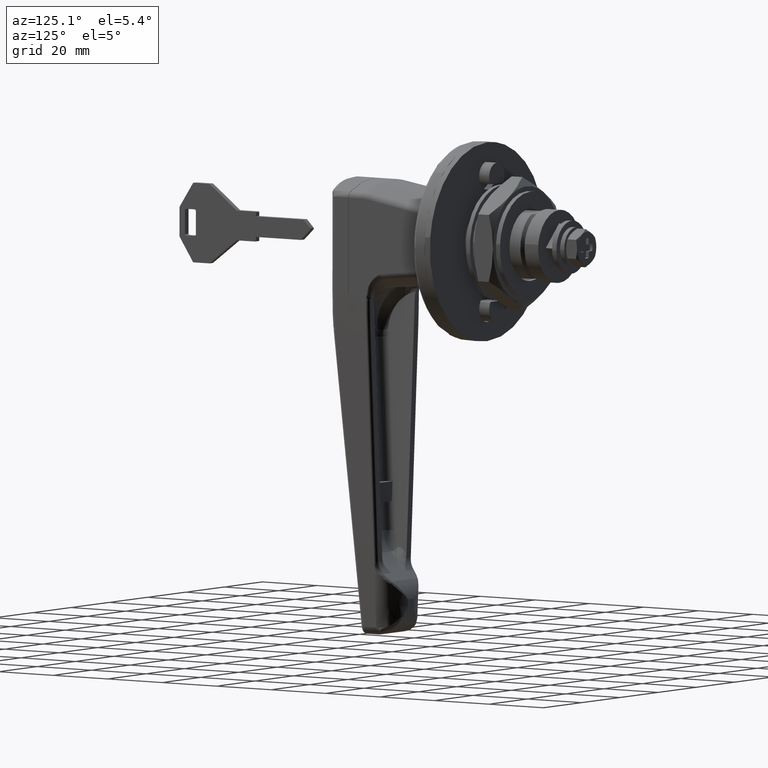
[diagram: clean part render]
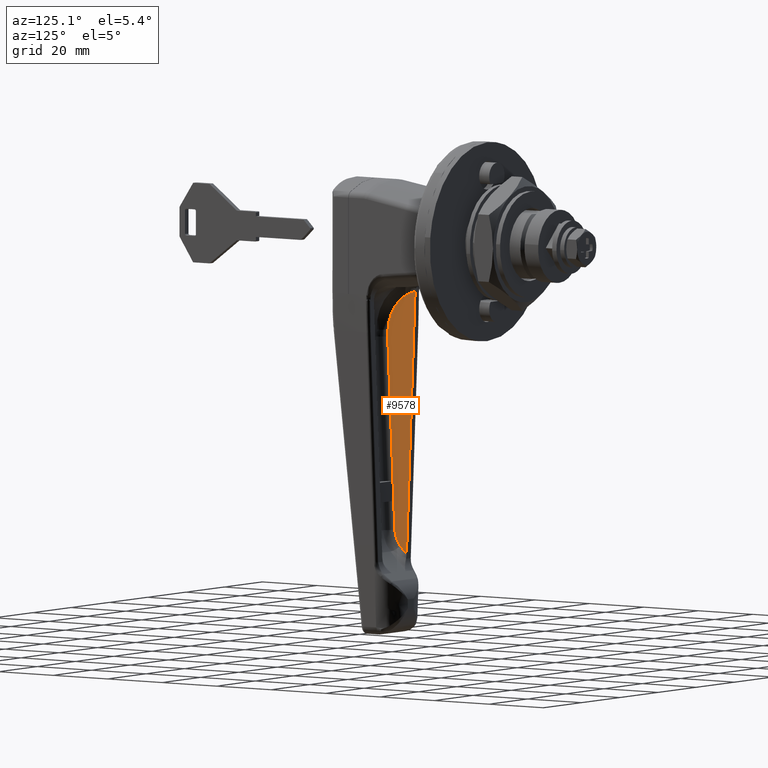
[diagram: same view with one face highlighted and labeled with its STEP entity id]
A machine part, auxiliary view. The second image highlights one B-rep face of the part: STEP entity #9578.
In plain terms, the highlighted face is a freeform B-spline surface patch.
Its self-contained STEP definition (entity closure, byte-faithful):
#8123=CARTESIAN_POINT('',(-32.928008071129653,10.770800055693000,-17.766841022822248));
#8124=VERTEX_POINT('',#8123);
#8168=CARTESIAN_POINT('',(-33.099999999999987,10.683275159098100,-19.316112343968701));
#8169=VERTEX_POINT('',#8168);
#8170=CARTESIAN_POINT('',(-33.099999999999987,10.683275159098100,-19.316112343968701));
#8171=CARTESIAN_POINT('',(-33.099999999999987,10.698041849966019,-19.054728308569210));
#8172=CARTESIAN_POINT('',(-33.070916845103348,10.727393411414370,-18.535178624400402));
#8173=CARTESIAN_POINT('',(-32.985227729266740,10.756391087181200,-18.021893042889008));
#8174=CARTESIAN_POINT('',(-32.928008071129653,10.770800055693019,-17.766841022822248));
#8175=B_SPLINE_CURVE_WITH_KNOTS('',3,(#8170,#8171,#8172,#8173,#8174),.UNSPECIFIED.,.F.,.U.,(4,1,4),(0.0,0.500000000000000,1.0),.UNSPECIFIED.);
#8176=EDGE_CURVE('',#8169,#8124,#8175,.T.);
#8408=CARTESIAN_POINT('',(-37.671831529858103,6.716446244393940,-89.532639441256308));
#8409=VERTEX_POINT('',#8408);
#8450=CARTESIAN_POINT('',(-35.501833188250487,6.452561439727720,-94.203643645325798));
#8451=VERTEX_POINT('',#8450);
#8465=CARTESIAN_POINT('',(-35.501833188250487,6.452561439727720,-94.203643645325798));
#8466=CARTESIAN_POINT('',(-36.437437625319923,6.505425344052883,-93.267903826359415));
#8467=CARTESIAN_POINT('',(-37.000602744492909,6.574067007767063,-92.052883127502497));
#8468=CARTESIAN_POINT('',(-37.560755301722871,6.642341483854277,-90.844361987994660));
#8469=CARTESIAN_POINT('',(-37.671831529857869,6.716446244393937,-89.532639441256279));
#8470=B_SPLINE_CURVE_WITH_KNOTS('',2,(#8465,#8466,#8467,#8468,#8469),.UNSPECIFIED.,.F.,.U.,(3,2,3),(0.0,0.500000000000000,1.0),.UNSPECIFIED.);
#8471=EDGE_CURVE('',#8451,#8409,#8470,.T.);
#8516=CARTESIAN_POINT('',(-42.560724329634198,9.980866958505420,-31.749384741336499));
#8517=VERTEX_POINT('',#8516);
#8518=CARTESIAN_POINT('',(-37.671831529858103,6.716446244393940,-89.532639441256308));
#8519=CARTESIAN_POINT('',(-39.301462463116799,7.804586482431100,-70.271554541283066));
#8520=CARTESIAN_POINT('',(-40.931093396375481,8.892726720468259,-51.010469641309733));
#8521=CARTESIAN_POINT('',(-42.560724329634198,9.980866958505420,-31.749384741336488));
#8522=B_SPLINE_CURVE_WITH_KNOTS('',3,(#8518,#8519,#8520,#8521),.UNSPECIFIED.,.F.,.U.,(4,4),(0.668071399982247,1.0),.UNSPECIFIED.);
#8523=EDGE_CURVE('',#8409,#8517,#8522,.T.);
#8604=CARTESIAN_POINT('',(-42.560724329634198,10.091964790769660,-29.782850737130850));
#8605=VERTEX_POINT('',#8604);
#8648=CARTESIAN_POINT('',(-42.560724329634212,10.036415874637539,-30.766117739233689));
#8649=VERTEX_POINT('',#8648);
#8650=CARTESIAN_POINT('',(-42.560724329634198,9.980866958505418,-31.749384741336510));
#8651=CARTESIAN_POINT('',(-42.560724329634198,9.981534344518829,-31.737571393924089));
#8652=CARTESIAN_POINT('',(-42.560724329634198,9.982201730532241,-31.725758046511672));
#8653=CARTESIAN_POINT('',(-42.560724329634198,9.982869116545651,-31.713944699099251));
#8654=CARTESIAN_POINT('',(-42.560724329634212,10.000718035909619,-31.398002379144060));
#8655=CARTESIAN_POINT('',(-42.560724329634212,10.018566955273579,-31.082060059188880));
#8656=CARTESIAN_POINT('',(-42.560724329634212,10.036415874637539,-30.766117739233689));
#8657=B_SPLINE_CURVE_WITH_KNOTS('',3,(#8650,#8651,#8652,#8653,#8654,#8655,#8656),.UNSPECIFIED.,.F.,.U.,(4,3,4),(0.683649511403601,0.689350645812494,0.841824755701801),.UNSPECIFIED.);
#8658=EDGE_CURVE('',#8517,#8649,#8657,.T.);
#8660=CARTESIAN_POINT('',(-42.560724329634212,10.036415874637539,-30.766117739233689));
#8661=CARTESIAN_POINT('',(-42.560724329634212,10.054932180014911,-30.438362071866070));
#8662=CARTESIAN_POINT('',(-42.560724329634212,10.073448485392280,-30.110606404498458));
#8663=CARTESIAN_POINT('',(-42.560724329634198,10.091964790769660,-29.782850737130850));
#8664=B_SPLINE_CURVE_WITH_KNOTS('',3,(#8660,#8661,#8662,#8663),.UNSPECIFIED.,.F.,.U.,(4,4),(0.841824755701801,1.0),.UNSPECIFIED.);
#8665=EDGE_CURVE('',#8649,#8605,#8664,.T.);
#8799=CARTESIAN_POINT('',(-33.099999999999987,10.768894353028321,-17.800573716032051));
#8800=VERTEX_POINT('',#8799);
#8801=CARTESIAN_POINT('',(-42.560724329634198,10.091964790769660,-29.782850737130850));
#8802=CARTESIAN_POINT('',(-42.560552060380900,10.216541773064460,-27.577723356775142));
#8803=CARTESIAN_POINT('',(-41.811446139144891,10.333363193654350,-25.509876565100431));
#8804=CARTESIAN_POINT('',(-41.073461476216927,10.448450278474660,-23.472729114682569));
#8805=CARTESIAN_POINT('',(-39.706755112418954,10.541878262805909,-21.818967701095239));
#8806=CARTESIAN_POINT('',(-38.380375402484837,10.632549518928990,-20.214002917030189));
#8807=CARTESIAN_POINT('',(-36.618288955486911,10.691741863492300,-19.166243874391530));
#8808=CARTESIAN_POINT('',(-34.961371797095907,10.747401341220741,-18.181019830154849));
#8809=CARTESIAN_POINT('',(-33.099999999999909,10.768894353028321,-17.800573716032041));
#8810=B_SPLINE_CURVE_WITH_KNOTS('',2,(#8801,#8802,#8803,#8804,#8805,#8806,#8807,#8808,#8809),.UNSPECIFIED.,.F.,.U.,(3,2,2,2,3),(0.0,0.250000000000000,0.500000000000000,0.750000000000000,1.0),.UNSPECIFIED.);
#8811=EDGE_CURVE('',#8605,#8800,#8810,.T.);
#8813=CARTESIAN_POINT('',(-33.099999999999909,10.768894353028321,-17.800573716032041));
#8814=CARTESIAN_POINT('',(-32.928008071129653,10.770800055693000,-17.766841022822248));
#8815=QUASI_UNIFORM_CURVE('',1,(#8813,#8814),.UNSPECIFIED.,.F.,.U.);
#8816=EDGE_CURVE('',#8800,#8124,#8815,.T.);
#9379=CARTESIAN_POINT('',(-33.099999999999987,6.316871713486390,-96.605476833576304));
#9380=VERTEX_POINT('',#9379);
#9381=CARTESIAN_POINT('',(-34.300916594125333,6.384716576607056,-95.404560239451044));
#9382=VERTEX_POINT('',#9381);
#9383=CARTESIAN_POINT('',(-33.100000000000030,6.316871713486392,-96.605476833576290));
#9384=CARTESIAN_POINT('',(-33.500305531375133,6.339486667859946,-96.205171302201208));
#9385=CARTESIAN_POINT('',(-33.900611062750230,6.362101622233501,-95.804865770826140));
#9386=CARTESIAN_POINT('',(-34.300916594125333,6.384716576607056,-95.404560239451058));
#9387=B_SPLINE_CURVE_WITH_KNOTS('',3,(#9383,#9384,#9385,#9386),.UNSPECIFIED.,.F.,.U.,(4,4),(0.0,0.043655723827668),.UNSPECIFIED.);
#9388=EDGE_CURVE('',#9380,#9382,#9387,.T.);
#9390=CARTESIAN_POINT('',(-34.300916594125333,6.384716576607056,-95.404560239451058));
#9391=CARTESIAN_POINT('',(-34.701222125500443,6.407331530980611,-95.004254708075976));
#9392=CARTESIAN_POINT('',(-35.101527656875547,6.429946485354165,-94.603949176700880));
#9393=CARTESIAN_POINT('',(-35.501833188250650,6.452561439727720,-94.203643645325798));
#9394=B_SPLINE_CURVE_WITH_KNOTS('',3,(#9390,#9391,#9392,#9393),.UNSPECIFIED.,.F.,.U.,(4,4),(0.043655723827668,0.087311447655337),.UNSPECIFIED.);
#9395=EDGE_CURVE('',#9382,#8451,#9394,.T.);
#9557=CARTESIAN_POINT('',(-43.041880408597841,10.993273725943370,-13.828852056960370));
#9558=CARTESIAN_POINT('',(-43.041880408597841,6.094397883951150,-100.543468618927510));
#9559=CARTESIAN_POINT('',(-32.446855006477833,10.993273725943370,-13.828852056960370));
#9560=CARTESIAN_POINT('',(-32.446855006477833,6.094397883951150,-100.543468618927510));
#9561=B_SPLINE_SURFACE_WITH_KNOTS('',1,1,((#9557,#9559),(#9558,#9560)),.UNSPECIFIED.,.F.,.F.,.U.,(2,2),(2,2),(0.0,86.852885444320378),(0.0,10.595025402120010),.UNSPECIFIED.);
#9562=CARTESIAN_POINT('',(-33.099999999999987,6.316871713486390,-96.605476833576304));
#9563=CARTESIAN_POINT('',(-33.099999999999987,10.683275159098100,-19.316112343968701));
#9564=QUASI_UNIFORM_CURVE('',1,(#9562,#9563),.UNSPECIFIED.,.F.,.U.);
#9565=EDGE_CURVE('',#9380,#8169,#9564,.T.);
#9566=ORIENTED_EDGE('',*,*,#9565,.T.);
#9567=ORIENTED_EDGE('',*,*,#8176,.T.);
#9568=ORIENTED_EDGE('',*,*,#8816,.F.);
#9569=ORIENTED_EDGE('',*,*,#8811,.F.);
#9570=ORIENTED_EDGE('',*,*,#8665,.F.);
#9571=ORIENTED_EDGE('',*,*,#8658,.F.);
#9572=ORIENTED_EDGE('',*,*,#8523,.F.);
#9573=ORIENTED_EDGE('',*,*,#8471,.F.);
#9574=ORIENTED_EDGE('',*,*,#9395,.F.);
#9575=ORIENTED_EDGE('',*,*,#9388,.F.);
#9576=EDGE_LOOP('',(#9566,#9567,#9568,#9569,#9570,#9571,#9572,#9573,#9574,#9575));
#9577=FACE_OUTER_BOUND('',#9576,.T.);
#9578=ADVANCED_FACE('',(#9577),#9561,.T.);